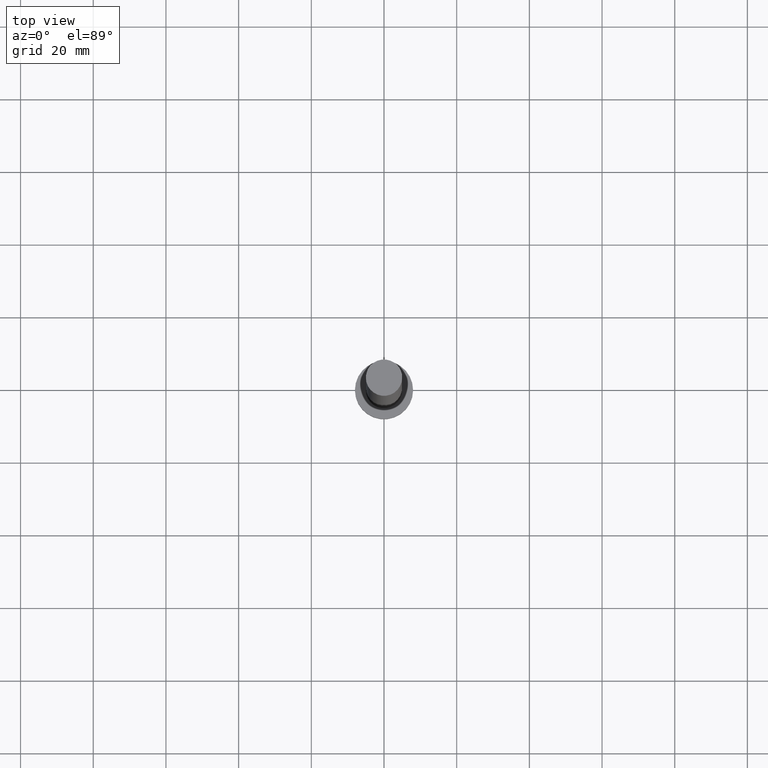
[diagram: clean part render]
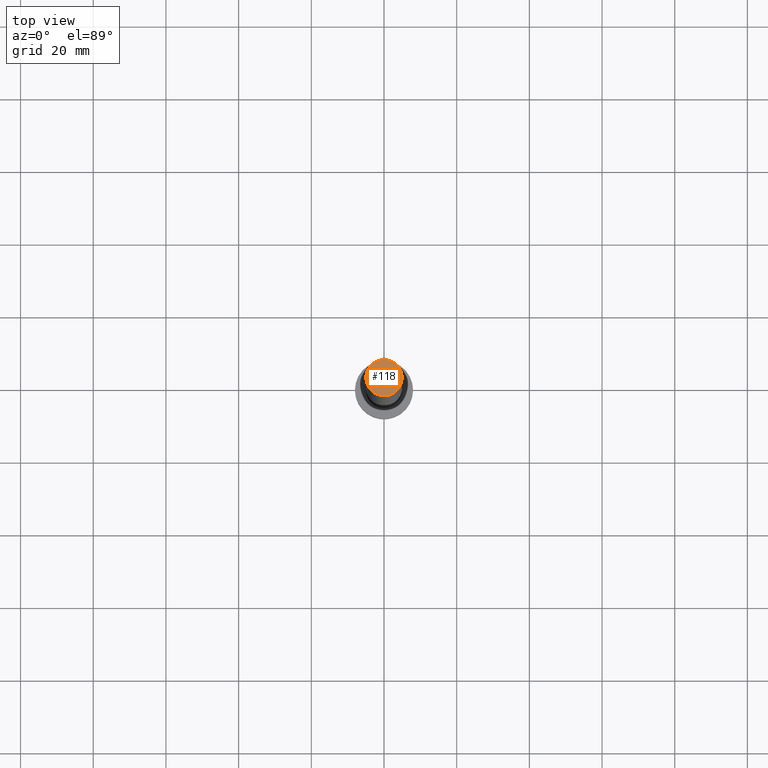
[diagram: same view with one face highlighted and labeled with its STEP entity id]
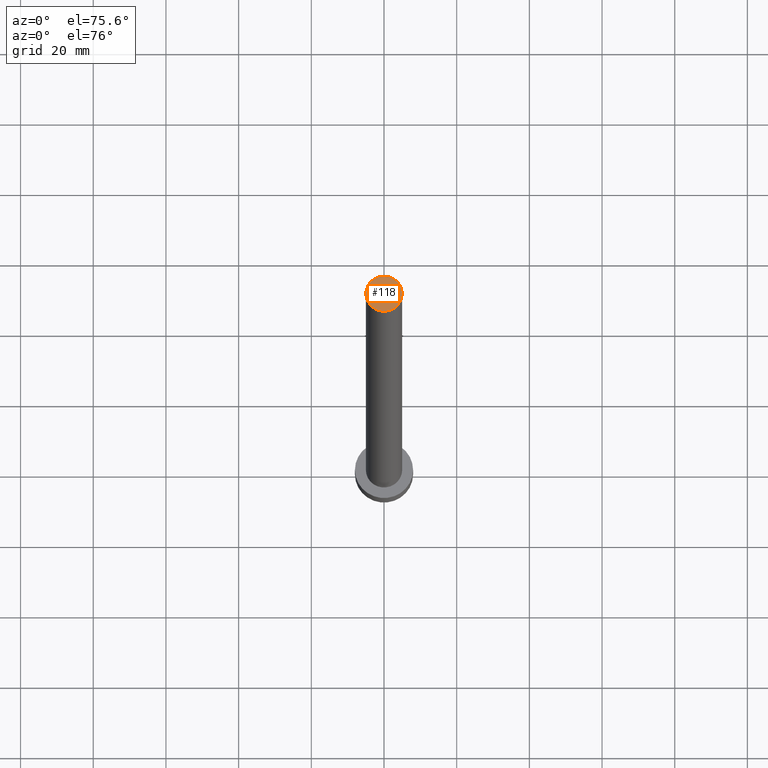
[diagram: same view with one face highlighted and labeled with its STEP entity id]
A machine part, top view. The second image highlights one B-rep face of the part: STEP entity #118.
A second angle (auxiliary view) of the same face is appended — the face is thin or edge-on in the first view.
In plain terms, the highlighted planar face has unit normal (0, 0, 1).
Its self-contained STEP definition (entity closure, byte-faithful):
#7 = CARTESIAN_POINT ( 'NONE',  ( 5.000000000000000888, 6.123233995736767268E-16, 200.0000000000000000 ) ) ;
#21 = CARTESIAN_POINT ( 'NONE',  ( -5.000000000000000888, 0.000000000000000000, 200.0000000000000000 ) ) ;
#24 = DIRECTION ( 'NONE',  ( 0.000000000000000000, 0.000000000000000000, 1.000000000000000000 ) ) ;
#34 = ORIENTED_EDGE ( 'NONE', *, *, #88, .T. ) ;
#51 = VERTEX_POINT ( 'NONE', #21 ) ;
#66 = EDGE_CURVE ( 'NONE', #229, #51, #237, .T. ) ;
#81 = CARTESIAN_POINT ( 'NONE',  ( 0.000000000000000000, 0.000000000000000000, 200.0000000000000000 ) ) ;
#83 = AXIS2_PLACEMENT_3D ( 'NONE', #81, #100, #197 ) ;
#88 = EDGE_CURVE ( 'NONE', #51, #229, #193, .T. ) ;
#99 = EDGE_LOOP ( 'NONE', ( #34, #124 ) ) ;
#100 = DIRECTION ( 'NONE',  ( 0.000000000000000000, 0.000000000000000000, 1.000000000000000000 ) ) ;
#118 = ADVANCED_FACE ( 'NONE', ( #162 ), #243, .T. ) ;
#120 = CARTESIAN_POINT ( 'NONE',  ( 0.000000000000000000, 0.000000000000000000, 200.0000000000000000 ) ) ;
#123 = AXIS2_PLACEMENT_3D ( 'NONE', #140, #24, #200 ) ;
#124 = ORIENTED_EDGE ( 'NONE', *, *, #66, .T. ) ;
#140 = CARTESIAN_POINT ( 'NONE',  ( 0.000000000000000000, 0.000000000000000000, 200.0000000000000000 ) ) ;
#145 = AXIS2_PLACEMENT_3D ( 'NONE', #120, #217, #161 ) ;
#161 = DIRECTION ( 'NONE',  ( 1.000000000000000000, 0.000000000000000000, -0.000000000000000000 ) ) ;
#162 = FACE_OUTER_BOUND ( 'NONE', #99, .T. ) ;
#193 = CIRCLE ( 'NONE', #83, 5.000000000000000888 ) ;
#197 = DIRECTION ( 'NONE',  ( 1.000000000000000000, 0.000000000000000000, 0.000000000000000000 ) ) ;
#200 = DIRECTION ( 'NONE',  ( 1.000000000000000000, 0.000000000000000000, 0.000000000000000000 ) ) ;
#217 = DIRECTION ( 'NONE',  ( 0.000000000000000000, 0.000000000000000000, 1.000000000000000000 ) ) ;
#229 = VERTEX_POINT ( 'NONE', #7 ) ;
#237 = CIRCLE ( 'NONE', #123, 5.000000000000000888 ) ;
#243 = PLANE ( 'NONE',  #145 ) ;